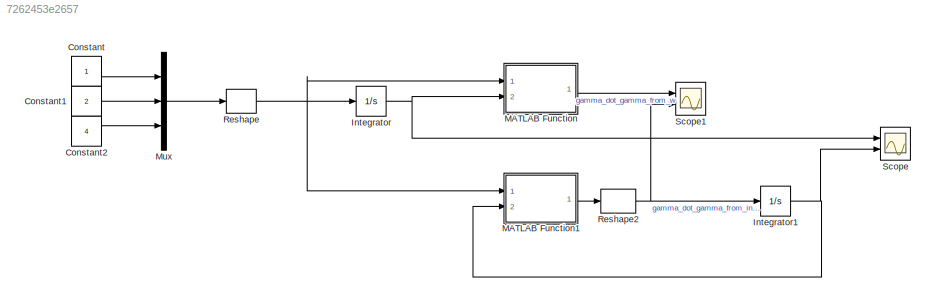
MODEL slx_7262453e2657
KIND model
CONFIG AbsTol = auto
CONFIG EnableMultiTasking = off
CONFIG FixedStep = auto
CONFIG MaxStep = auto
CONFIG MinStep = auto
CONFIG RelTol = 1e-3
CONFIG SampleTimeConstraint = Unconstrained
CONFIG Solver = VariableStepAuto
CONFIG SolverName = VariableStepAuto
CONFIG StartTime = 0.0
CONFIG StopTime = 10.0
BLOCK [Constant] Constant
BLOCK [Constant] Constant1
  Value = 2
BLOCK [Constant] Constant2
  Value = 4
BLOCK [Integrator] Integrator
  Ports = [1, 1]
BLOCK [Integrator] Integrator1
  Ports = [1, 1]
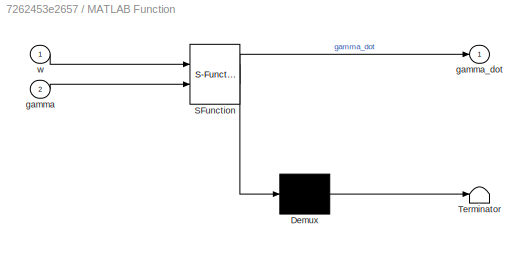
BLOCK [SubSystem] MATLAB Function
  ErrorFcn = Stateflow.Translate.translate
  PermitHierarchicalResolution = ExplicitOnly
  Ports = [2, 1]
  RequestExecContextInheritance = off
  SFBlockType = MATLAB Function
  TreatAsAtomicUnit = on
BLOCK [Demux] MATLAB Function/ Demux 
  Outputs = 1
  Ports = [1, 1]
BLOCK [S-Function] MATLAB Function/ SFunction 
  EnableBusSupport = on
  FunctionName = sf_sfun
  PortCounts = [2 2]
  Ports = [2, 2]
  SFcnIsStateOwnerBlock = off
  SFunctionDeploymentMode = off
  Tag = Stateflow S-Function TestEulerWinkel 2
BLOCK [Terminator] MATLAB Function/ Terminator 
BLOCK [Inport] MATLAB Function/gamma
  IconDisplay = Port number
  Port = 2
BLOCK [Outport] MATLAB Function/gamma_dot
  IconDisplay = Port number
BLOCK [Inport] MATLAB Function/w
  IconDisplay = Port number
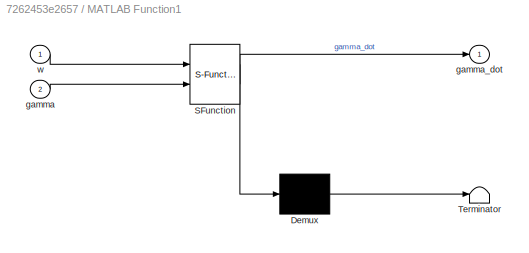
BLOCK [SubSystem] MATLAB Function1
  ErrorFcn = Stateflow.Translate.translate
  PermitHierarchicalResolution = ExplicitOnly
  Ports = [2, 1]
  RequestExecContextInheritance = off
  SFBlockType = MATLAB Function
  TreatAsAtomicUnit = on
BLOCK [Demux] MATLAB Function1/ Demux 
  Outputs = 1
  Ports = [1, 1]
BLOCK [S-Function] MATLAB Function1/ SFunction 
  EnableBusSupport = on
  FunctionName = sf_sfun
  PortCounts = [2 2]
  Ports = [2, 2]
  SFcnIsStateOwnerBlock = off
  SFunctionDeploymentMode = off
  Tag = Stateflow S-Function TestEulerWinkel 1
BLOCK [Terminator] MATLAB Function1/ Terminator 
BLOCK [Inport] MATLAB Function1/gamma
  IconDisplay = Port number
  Port = 2
BLOCK [Outport] MATLAB Function1/gamma_dot
  IconDisplay = Port number
BLOCK [Inport] MATLAB Function1/w
  IconDisplay = Port number
BLOCK [Mux] Mux
  DisplayOption = bar
  Inputs = 3
  Ports = [3, 1]
BLOCK [Reshape] Reshape
  OutputDimensionality = Column vector (2-D)
  Ports = [1, 1]
BLOCK [Reshape] Reshape2
  OutputDimensionality = Customize
  OutputDimensions = [3,1]
  Ports = [1, 1]
BLOCK [Scope] Scope
  Floating = off
  NumInputPorts = 2
  Ports = [2]
  ScopeSpecificationString = Simulink.scopes.TimeScopeBlockCfg('CurrentConfiguration', extmgr.ConfigurationSet(extmgr.Configuration('Core','General UI',true),extmgr.Configuration('Core','Source UI',true),extmgr.Configuration('Sources','WiredSimulink',true),extmgr.Configuration('Visuals','Time Domain',true,'SerializedDisplays',{struct('MinYLimReal','-3.00278','MaxYLimReal','27.02505','YLabelReal','','MinYLimMag','0.00000','Max...<+2716ch>
BLOCK [Scope] Scope1
  Floating = off
  NumInputPorts = 2
  Ports = [2]
  ScopeSpecificationString = Simulink.scopes.TimeScopeBlockCfg('CurrentConfiguration', extmgr.ConfigurationSet(extmgr.Configuration('Core','General UI',true),extmgr.Configuration('Core','Source UI',true),extmgr.Configuration('Sources','WiredSimulink',true,'DataLoggingVariableName','ScopeData1'),extmgr.Configuration('Visuals','Time Domain',true,'SerializedDisplays',{struct('MinYLimReal','-16069.53692','MaxYLimReal','16070.537'...<+2877ch>
LINE Constant1:1 -> Mux:2
LINE Constant2:1 -> Mux:3
LINE Constant:1 -> Mux:1
NET Integrator1:1 -> MATLAB Function1:2, Scope:2
NET Integrator:1 -> MATLAB Function:2, Scope:1
LINE MATLAB Function1:1 -> Reshape2:1
LINE MATLAB Function:1 -> Scope1:1
LINE Mux:1 -> Reshape:1
NET Reshape2:1 -> Integrator1:1, Scope1:2
NET Reshape:1 -> Integrator:1, MATLAB Function1:1, MATLAB Function:1
note: NET lines group one-source signal fan-out (src -> all destinations, sorted); 1:1 wires keep LINE
CHART MATLAB Function1 states=1 transitions=1
  STATE_LABEL 'eML_blk_kernel()'
  STATE_LABEL 'SCRIPT:\nfunction gamma_dot = fcn(w,gamma)\n\nphi = gamma(1);\ntheta = gamma(2);\npsi = gamma(3);\n\ngamma_dot = [0,\tsin(phi)/(-sin(phi)^2*cos(theta)-cos(phi)^2*cos(theta)),\t-cos(phi)/(-sin(phi)^2*cos(theta)-cos(phi)^2*cos(theta));\n             0,\t-(cos(phi)*cos(theta))/(-sin(phi)^2*cos(theta)-cos(phi)^2*cos(theta)),\t-(sin(phi)*cos(theta))/(-sin(phi)^2*cos(theta)-cos(phi)^2*cos(theta));\n             1,\t-...<+143ch>'
CHART MATLAB Function states=1 transitions=1
  STATE_LABEL 'eML_blk_kernel()'
  STATE_LABEL 'SCRIPT:\nfunction gamma_dot = fcn(w,gamma)\n\nphi = gamma(1);\ntheta = gamma(2);\npsi = gamma(3);\n\ngamma_dot = [0,\tsin(phi)/(-sin(phi)^2*cos(theta)-cos(phi)^2*cos(theta)),\t-cos(phi)/(-sin(phi)^2*cos(theta)-cos(phi)^2*cos(theta));\n             0,\t-(cos(phi)*cos(theta))/(-sin(phi)^2*cos(theta)-cos(phi)^2*cos(theta)),\t-(sin(phi)*cos(theta))/(-sin(phi)^2*cos(theta)-cos(phi)^2*cos(theta));\n             1,\t-...<+143ch>'
